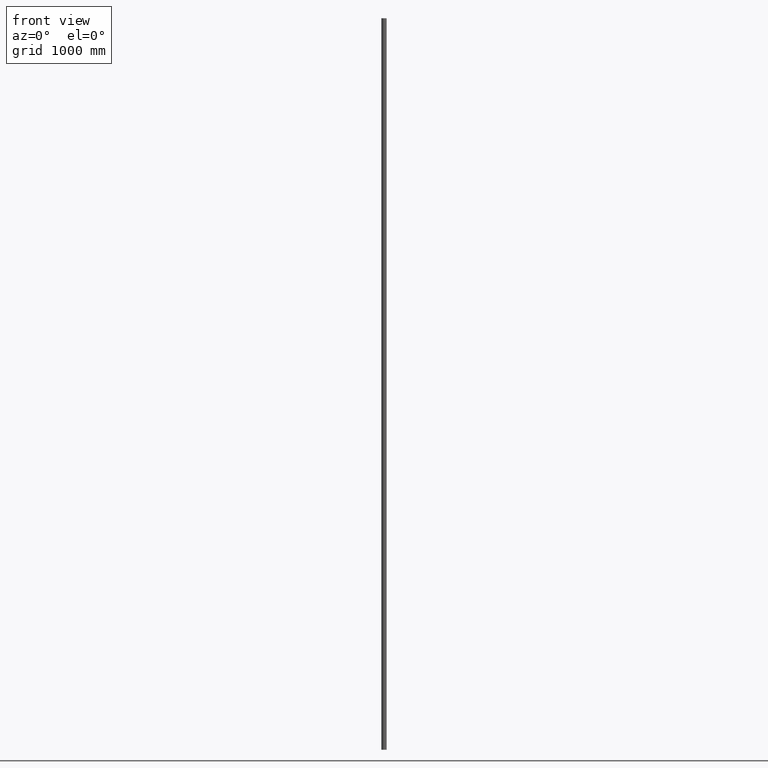
[diagram: clean part render]
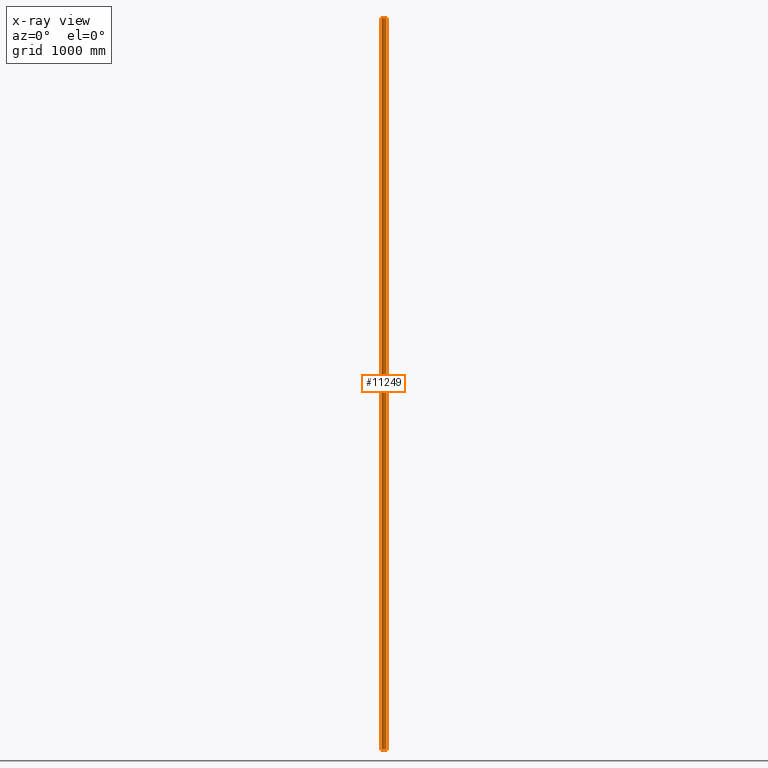
[diagram: x-ray — body ghosted, one internal face saturated and labeled with its STEP entity id]
A machine part, front view, then the same camera in x-ray: the body is ghosted and one INTERNAL B-rep face — a face not visible from any outside direction — is saturated and labeled: STEP entity #11249.
In plain terms, the highlighted cylindrical surface (bore or boss wall) has radius 21.2 mm, axis along (-0, -0, -1).
Its self-contained STEP definition (entity closure, byte-faithful):
#31 = VERTEX_POINT ( 'NONE', #5598 ) ;
#1370 = VERTEX_POINT ( 'NONE', #12276 ) ;
#1828 = EDGE_CURVE ( 'NONE', #31, #31, #9499, .T. ) ;
#1893 = CARTESIAN_POINT ( 'NONE',  ( 0.000000000000000000, 0.000000000000000000, 3000.000000000000000 ) ) ;
#3655 = FACE_OUTER_BOUND ( 'NONE', #9364, .T. ) ;
#4553 = CIRCLE ( 'NONE', #11429, 21.19999999999999929 ) ;
#4844 = ORIENTED_EDGE ( 'NONE', *, *, #11649, .F. ) ;
#5373 = DIRECTION ( 'NONE',  ( 0.000000000000000000, 0.000000000000000000, 1.000000000000000000 ) ) ;
#5598 = CARTESIAN_POINT ( 'NONE',  ( 21.19999999999999929, 0.000000000000000000, -3000.000000000000000 ) ) ;
#6353 = DIRECTION ( 'NONE',  ( 1.000000000000000000, 0.000000000000000000, 0.000000000000000000 ) ) ;
#6881 = AXIS2_PLACEMENT_3D ( 'NONE', #12018, #5373, #6353 ) ;
#7654 = CARTESIAN_POINT ( 'NONE',  ( 0.000000000000000000, 0.000000000000000000, 3000.000000000000000 ) ) ;
#7700 = DIRECTION ( 'NONE',  ( 1.000000000000000000, 0.000000000000000000, 0.000000000000000000 ) ) ;
#7943 = ORIENTED_EDGE ( 'NONE', *, *, #1828, .T. ) ;
#8587 = DIRECTION ( 'NONE',  ( 0.000000000000000000, 0.000000000000000000, 1.000000000000000000 ) ) ;
#8667 = AXIS2_PLACEMENT_3D ( 'NONE', #1893, #9567, #10526 ) ;
#9364 = EDGE_LOOP ( 'NONE', ( #7943 ) ) ;
#9499 = CIRCLE ( 'NONE', #6881, 21.19999999999999929 ) ;
#9567 = DIRECTION ( 'NONE',  ( -0.000000000000000000, -0.000000000000000000, -1.000000000000000000 ) ) ;
#10526 = DIRECTION ( 'NONE',  ( -1.000000000000000000, 0.000000000000000000, 0.000000000000000000 ) ) ;
#11249 = ADVANCED_FACE ( 'NONE', ( #11792, #3655 ), #12247, .T. ) ;
#11429 = AXIS2_PLACEMENT_3D ( 'NONE', #7654, #8587, #7700 ) ;
#11642 = EDGE_LOOP ( 'NONE', ( #4844 ) ) ;
#11649 = EDGE_CURVE ( 'NONE', #1370, #1370, #4553, .T. ) ;
#11792 = FACE_OUTER_BOUND ( 'NONE', #11642, .T. ) ;
#12018 = CARTESIAN_POINT ( 'NONE',  ( 0.000000000000000000, 0.000000000000000000, -3000.000000000000000 ) ) ;
#12247 = CYLINDRICAL_SURFACE ( 'NONE', #8667, 21.19999999999999929 ) ;
#12276 = CARTESIAN_POINT ( 'NONE',  ( 21.19999999999999929, 0.000000000000000000, 3000.000000000000000 ) ) ;